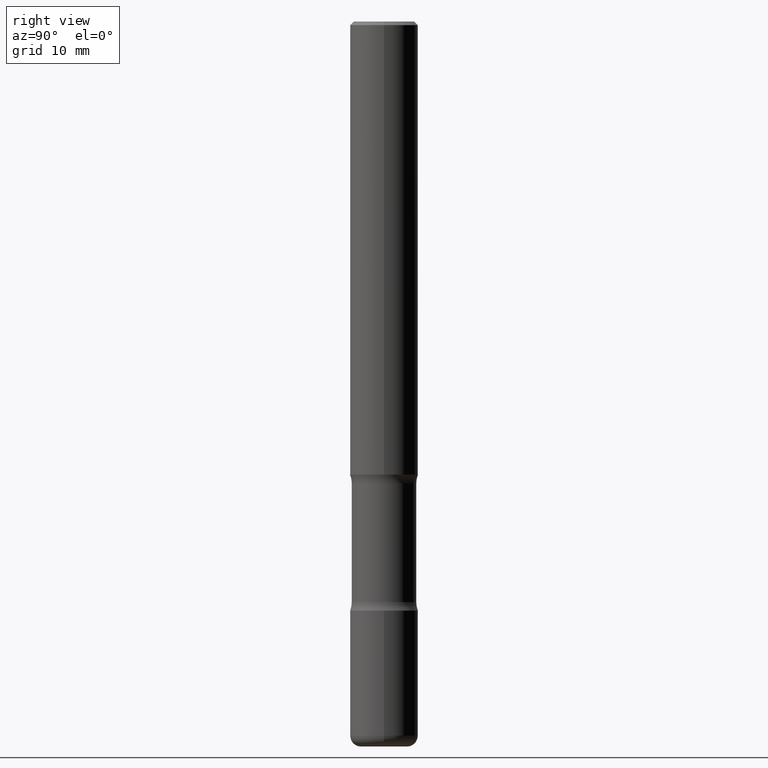
[diagram: clean part render]
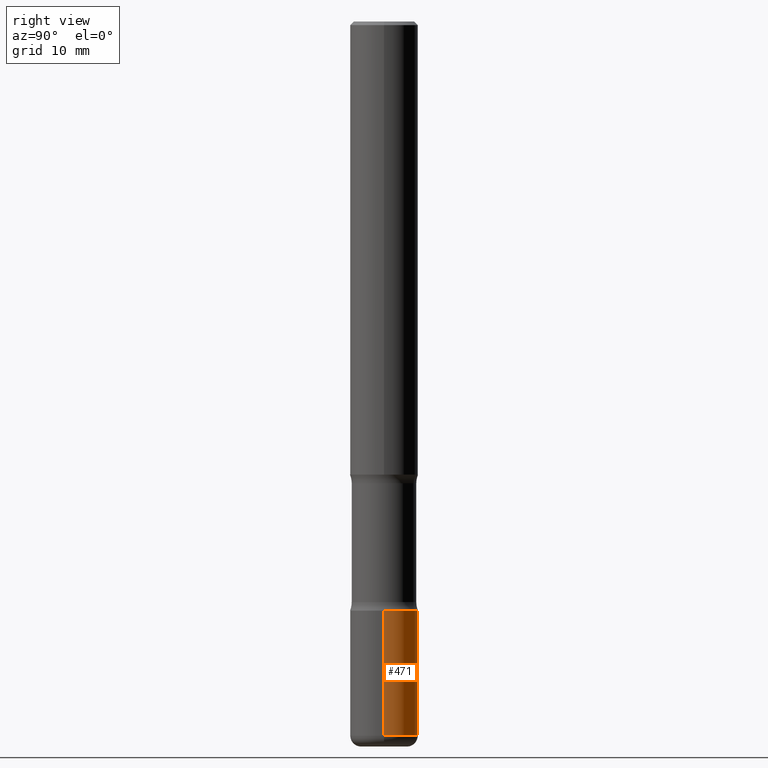
[diagram: same view with one face highlighted and labeled with its STEP entity id]
A machine part, right view. The second image highlights one B-rep face of the part: STEP entity #471.
In plain terms, the highlighted cylindrical surface (edge-blend (fillet) strip) has radius 4.7625 mm, axis along (-0, 0, 1).
Its self-contained STEP definition (entity closure, byte-faithful):
#50 = VERTEX_POINT ( 'NONE', #489 ) ;
#72 = DIRECTION ( 'NONE',  ( 1.000000000000000000, -6.982962677686266711E-15, 4.876176775795935793E-29 ) ) ;
#73 = CARTESIAN_POINT ( 'NONE',  ( -0.1875000000000000833, -1.121960778359092137E-14, -3.250000000000000444 ) ) ;
#76 = DIRECTION ( 'NONE',  ( -2.445468806185136597E-29, 3.491481338843145583E-15, 1.000000000000000000 ) ) ;
#84 = CARTESIAN_POINT ( 'NONE',  ( 0.1875000000000001110, -1.506574197710817060E-14, -3.939999999999999947 ) ) ;
#115 = DIRECTION ( 'NONE',  ( -2.445468806185136597E-29, 3.491481338843145583E-15, 1.000000000000000000 ) ) ;
#129 = CIRCLE ( 'NONE', #557, 0.1875000000000001388 ) ;
#148 = DIRECTION ( 'NONE',  ( -2.445468806185136597E-29, 3.491481338843145583E-15, 1.000000000000000000 ) ) ;
#154 = CARTESIAN_POINT ( 'NONE',  ( -0.1875000000000001110, 1.332267629550188637E-15, -9.223003294227953596E-30 ) ) ;
#155 = CARTESIAN_POINT ( 'NONE',  ( 0.000000000000000000, 0.000000000000000000, 0.000000000000000000 ) ) ;
#160 = LINE ( 'NONE', #214, #441 ) ;
#171 = EDGE_CURVE ( 'NONE', #175, #265, #460, .T. ) ;
#175 = VERTEX_POINT ( 'NONE', #203 ) ;
#185 = ORIENTED_EDGE ( 'NONE', *, *, #500, .T. ) ;
#192 = DIRECTION ( 'NONE',  ( 1.000000000000000000, -6.982962677686267499E-15, 0.000000000000000000 ) ) ;
#199 = VECTOR ( 'NONE', #281, 39.37007874015748143 ) ;
#203 = CARTESIAN_POINT ( 'NONE',  ( -0.1875000000000001110, -1.242416884549180617E-14, -3.939999999999999947 ) ) ;
#214 = CARTESIAN_POINT ( 'NONE',  ( 0.1875000000000001110, -1.309305502066175797E-15, 9.142831454617385217E-30 ) ) ;
#218 = AXIS2_PLACEMENT_3D ( 'NONE', #550, #115, #552 ) ;
#234 = EDGE_CURVE ( 'NONE', #50, #265, #252, .T. ) ;
#236 = CYLINDRICAL_SURFACE ( 'NONE', #362, 0.1875000000000001110 ) ;
#252 = CIRCLE ( 'NONE', #218, 0.1875000000000000833 ) ;
#265 = VERTEX_POINT ( 'NONE', #73 ) ;
#281 = DIRECTION ( 'NONE',  ( -2.445468806185136877E-29, 3.491481338843145188E-15, 1.000000000000000000 ) ) ;
#296 = VERTEX_POINT ( 'NONE', #84 ) ;
#319 = EDGE_LOOP ( 'NONE', ( #185, #525, #518, #514 ) ) ;
#332 = CARTESIAN_POINT ( 'NONE',  ( 9.635147096369438236E-29, -1.375643647504199401E-14, -3.939999999999999947 ) ) ;
#362 = AXIS2_PLACEMENT_3D ( 'NONE', #155, #76, #72 ) ;
#363 = EDGE_CURVE ( 'NONE', #296, #50, #160, .T. ) ;
#391 = DIRECTION ( 'NONE',  ( -2.445468806185136877E-29, 3.491481338843145188E-15, 1.000000000000000000 ) ) ;
#441 = VECTOR ( 'NONE', #391, 39.37007874015748143 ) ;
#460 = LINE ( 'NONE', #154, #199 ) ;
#461 = FACE_OUTER_BOUND ( 'NONE', #319, .T. ) ;
#471 = ADVANCED_FACE ( 'NONE', ( #461 ), #236, .T. ) ;
#489 = CARTESIAN_POINT ( 'NONE',  ( 0.1875000000000000833, -1.265661985330640259E-14, -3.250000000000000444 ) ) ;
#500 = EDGE_CURVE ( 'NONE', #296, #175, #129, .T. ) ;
#514 = ORIENTED_EDGE ( 'NONE', *, *, #363, .F. ) ;
#518 = ORIENTED_EDGE ( 'NONE', *, *, #234, .F. ) ;
#525 = ORIENTED_EDGE ( 'NONE', *, *, #171, .T. ) ;
#550 = CARTESIAN_POINT ( 'NONE',  ( 7.947773620101696182E-29, -1.134731435124022600E-14, -3.250000000000000444 ) ) ;
#552 = DIRECTION ( 'NONE',  ( 1.000000000000000000, -6.982962677686269866E-15, 0.000000000000000000 ) ) ;
#557 = AXIS2_PLACEMENT_3D ( 'NONE', #332, #148, #192 ) ;